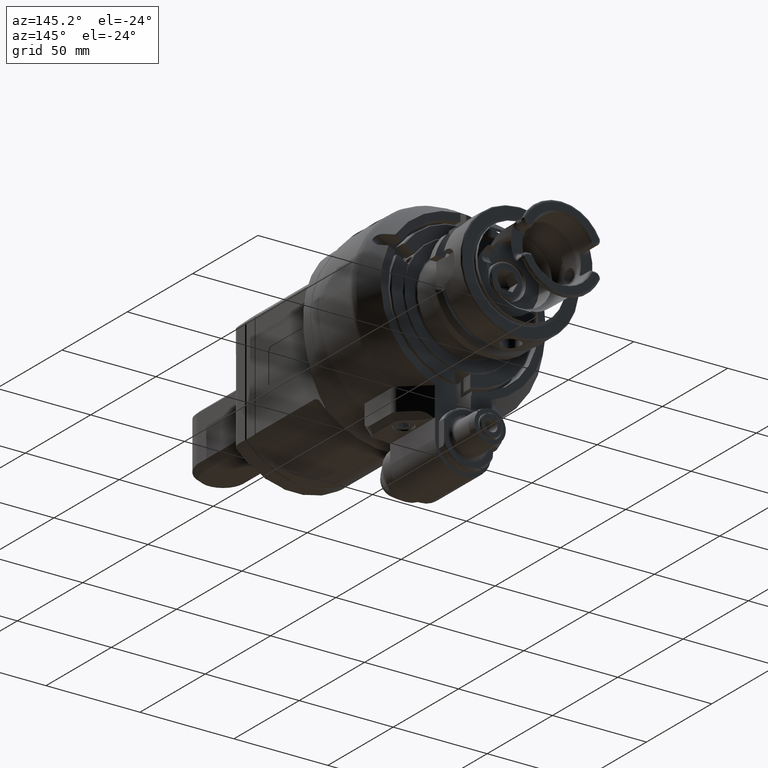
[diagram: clean part render]
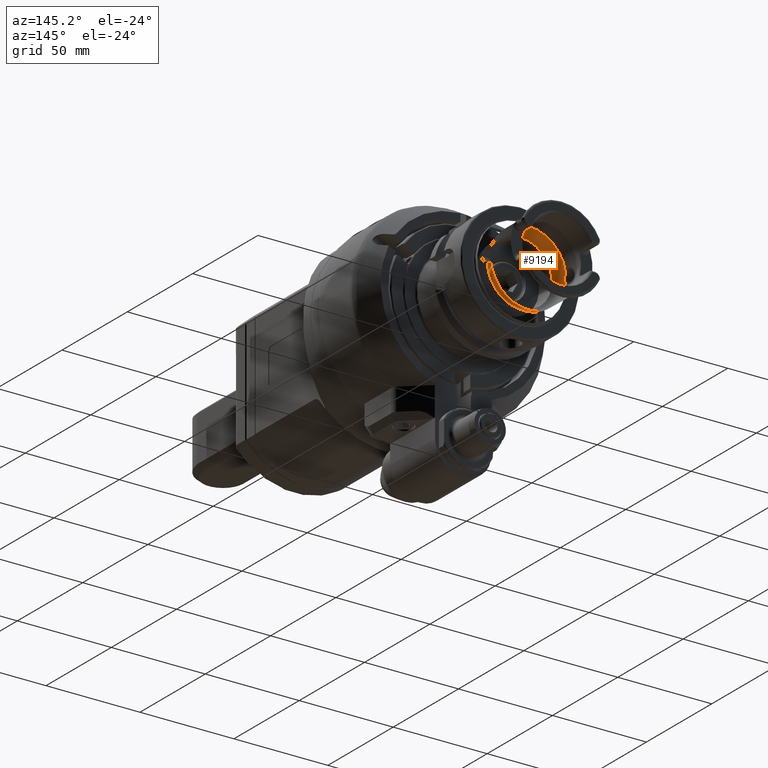
[diagram: same view with one face highlighted and labeled with its STEP entity id]
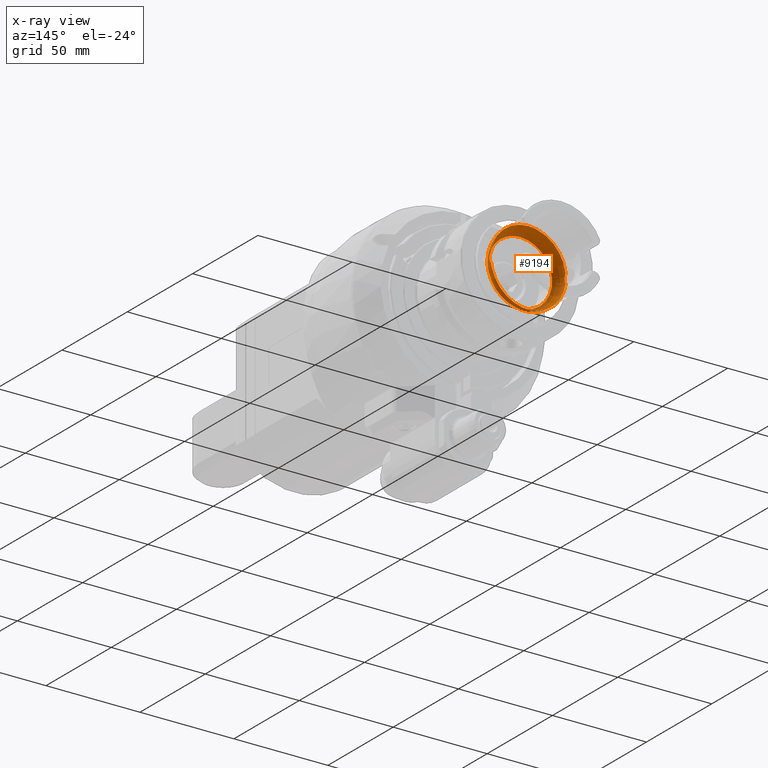
[diagram: x-ray of the same camera — body ghosted, the highlighted face saturated]
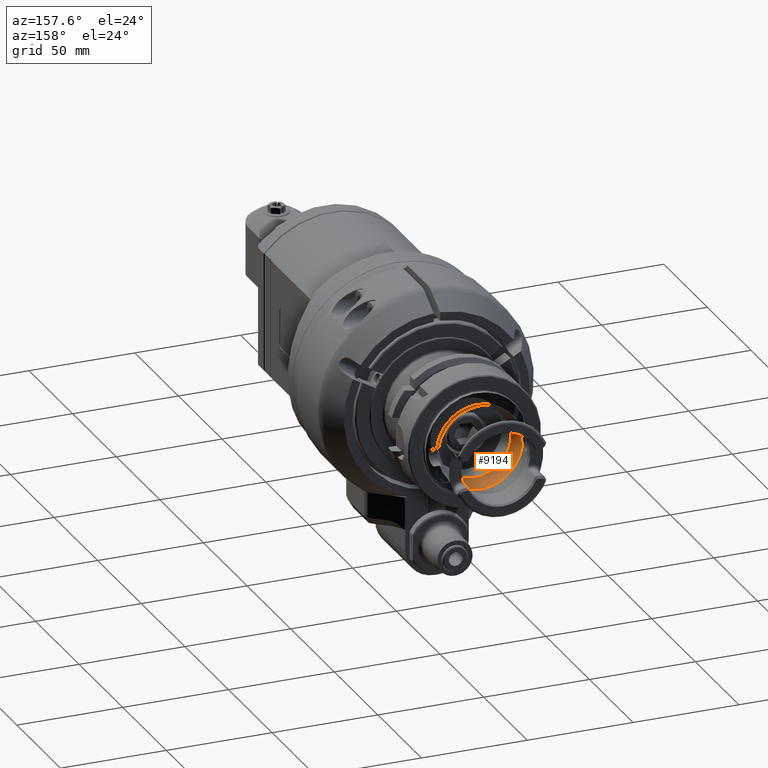
[diagram: same view with one face highlighted and labeled with its STEP entity id]
A machine part, auxiliary view. The second image highlights one B-rep face of the part: STEP entity #9194.
The next image is the same camera in x-ray: the body ghosted, the highlighted face saturated — about 6% of this face is hidden behind the body in this view.
A second angle (auxiliary view) of the same face is appended — the face is thin or edge-on in the first view.
In plain terms, the highlighted toroidal blend (fillet) surface has major radius 12 mm and minor (blend) radius 8 mm.
Its self-contained STEP definition (entity closure, byte-faithful):
#341=TOROIDAL_SURFACE('',#10091,0.47244094488189,0.31496062992126);
#495=B_SPLINE_CURVE_WITH_KNOTS('',3,(#16394,#16395,#16396,#16397,#16398,
#16399,#16400,#16401,#16402,#16403),.UNSPECIFIED.,.F.,.F.,(4,2,2,2,4),(1.98660032027334,
2.11130194476012,2.19789693302954,2.26163075647671,2.26785014392847),
 .UNSPECIFIED.);
#496=B_SPLINE_CURVE_WITH_KNOTS('',3,(#16404,#16405,#16406,#16407,#16408,
#16409,#16410,#16411,#16412,#16413),.UNSPECIFIED.,.F.,.F.,(4,2,2,2,4),(2.26785014392847,
2.32348682178374,2.40359511107754,2.54817630361161,2.54850230056354),
 .UNSPECIFIED.);
#497=B_SPLINE_CURVE_WITH_KNOTS('',3,(#16420,#16421,#16422,#16423,#16424,
#16425,#16426,#16427,#16428,#16429),.UNSPECIFIED.,.F.,.F.,(4,2,2,2,4),(1.98660032767908,
2.11130195305524,2.1978969420128,2.26163076599713,2.26785015350296),
 .UNSPECIFIED.);
#498=B_SPLINE_CURVE_WITH_KNOTS('',3,(#16430,#16431,#16432,#16433,#16434,
#16435,#16436,#16437,#16438,#16439),.UNSPECIFIED.,.F.,.F.,(4,2,2,2,4),(2.26785015350296,
2.32348683185534,2.40359512190154,2.5481763158632,2.54850231281622),
 .UNSPECIFIED.);
#2304=FACE_OUTER_BOUND('',#2882,.T.);
#2882=EDGE_LOOP('',(#7563,#7564,#7565,#7566,#7567,#7568,#7569,#7570,#7571,
#7572,#7573));
#3401=CIRCLE('',#10087,0.78740157480315);
#3402=CIRCLE('',#10088,0.787401574803149);
#3403=CIRCLE('',#10089,0.78740157480315);
#3404=CIRCLE('',#10092,0.669291338582677);
#3405=CIRCLE('',#10093,0.31496062992126);
#3406=CIRCLE('',#10094,0.669291338582677);
#4159=VERTEX_POINT('',#16320);
#4160=VERTEX_POINT('',#16322);
#4161=VERTEX_POINT('',#16324);
#4162=VERTEX_POINT('',#16356);
#4163=VERTEX_POINT('',#16358);
#4164=VERTEX_POINT('',#16392);
#4165=VERTEX_POINT('',#16415);
#4166=VERTEX_POINT('',#16416);
#4167=VERTEX_POINT('',#16419);
#5355=EDGE_CURVE('',#4160,#4159,#3401,.T.);
#5357=EDGE_CURVE('',#4162,#4161,#3402,.T.);
#5359=EDGE_CURVE('',#4159,#4163,#3403,.T.);
#5361=EDGE_CURVE('',#4164,#4161,#495,.F.);
#5362=EDGE_CURVE('',#4160,#4164,#496,.F.);
#5363=EDGE_CURVE('',#4165,#4166,#3404,.T.);
#5364=EDGE_CURVE('',#4166,#4159,#3405,.T.);
#5365=EDGE_CURVE('',#4167,#4163,#497,.F.);
#5366=EDGE_CURVE('',#4162,#4167,#498,.F.);
#5367=EDGE_CURVE('',#4166,#4165,#3406,.T.);
#7563=ORIENTED_EDGE('',*,*,#5363,.T.);
#7564=ORIENTED_EDGE('',*,*,#5364,.T.);
#7565=ORIENTED_EDGE('',*,*,#5359,.T.);
#7566=ORIENTED_EDGE('',*,*,#5365,.F.);
#7567=ORIENTED_EDGE('',*,*,#5366,.F.);
#7568=ORIENTED_EDGE('',*,*,#5357,.T.);
#7569=ORIENTED_EDGE('',*,*,#5361,.F.);
#7570=ORIENTED_EDGE('',*,*,#5362,.F.);
#7571=ORIENTED_EDGE('',*,*,#5355,.T.);
#7572=ORIENTED_EDGE('',*,*,#5364,.F.);
#7573=ORIENTED_EDGE('',*,*,#5367,.T.);
#9194=ADVANCED_FACE('',(#2304),#341,.F.);
#10087=AXIS2_PLACEMENT_3D('',#16323,#12090,#12091);
#10088=AXIS2_PLACEMENT_3D('',#16357,#12092,#12093);
#10089=AXIS2_PLACEMENT_3D('',#16390,#12094,#12095);
#10091=AXIS2_PLACEMENT_3D('',#16414,#12099,#12100);
#10092=AXIS2_PLACEMENT_3D('',#16417,#12101,#12102);
#10093=AXIS2_PLACEMENT_3D('',#16418,#12103,#12104);
#10094=AXIS2_PLACEMENT_3D('',#16440,#12105,#12106);
#12090=DIRECTION('center_axis',(0.,1.,0.));
#12091=DIRECTION('ref_axis',(0.991876423790776,0.,-0.127205188290497));
#12092=DIRECTION('center_axis',(0.,1.,0.));
#12093=DIRECTION('ref_axis',(-0.991876423790827,0.,0.127205188290103));
#12094=DIRECTION('center_axis',(0.,1.,0.));
#12095=DIRECTION('ref_axis',(0.991876423790776,0.,-0.127205188290497));
#12099=DIRECTION('center_axis',(0.,1.,0.));
#12100=DIRECTION('ref_axis',(-0.966794372151946,0.,0.255555555555586));
#12101=DIRECTION('center_axis',(0.,-1.,0.));
#12102=DIRECTION('ref_axis',(-0.966794372151946,0.,0.255555555555586));
#12103=DIRECTION('center_axis',(0.255555555555586,0.,0.966794372151946));
#12104=DIRECTION('ref_axis',(0.966794372151946,0.,-0.255555555555586));
#12105=DIRECTION('center_axis',(0.,-1.,0.));
#12106=DIRECTION('ref_axis',(-0.966794372151946,0.,0.255555555555586));
#16320=CARTESIAN_POINT('',(0.761255411143265,3.51358259834999,-0.201224846894162));
#16322=CARTESIAN_POINT('',(0.781005058104725,3.51358259835,-0.100161565569606));
#16323=CARTESIAN_POINT('Origin',(5.30359484797244E-16,3.51358259836221,
0.));
#16324=CARTESIAN_POINT('',(0.78100505810315,3.51358259836221,0.100161565582795));
#16356=CARTESIAN_POINT('',(-0.781005058104724,3.51358259835,0.100161565569803));
#16357=CARTESIAN_POINT('Origin',(5.30359484797244E-16,3.51358259836221,
0.));
#16358=CARTESIAN_POINT('',(-0.781005058104724,3.51358259835,-0.100161565569646));
#16390=CARTESIAN_POINT('Origin',(5.30359484797244E-16,3.51358259836221,
0.));
#16392=CARTESIAN_POINT('',(0.78495600492741,3.4744094488189,4.45542315885066E-17));
#16394=CARTESIAN_POINT('Ctrl Pts',(0.781005058103007,3.51358259836217,0.10016156558281));
#16395=CARTESIAN_POINT('Ctrl Pts',(0.782530646438696,3.50259752392881,0.0882658628766483));
#16396=CARTESIAN_POINT('Ctrl Pts',(0.783434837991581,3.49360074421099,0.074594820749288));
#16397=CARTESIAN_POINT('Ctrl Pts',(0.784410220143942,3.48243071099851,0.0493193486256723));
#16398=CARTESIAN_POINT('Ctrl Pts',(0.784647617515537,3.47905660019747,0.0384599110406886));
#16399=CARTESIAN_POINT('Ctrl Pts',(0.784894295558503,3.47541449660248,0.019115486885584));
#16400=CARTESIAN_POINT('Ctrl Pts',(0.784946055148237,3.47456795222828,0.0107943627447334));
#16401=CARTESIAN_POINT('Ctrl Pts',(0.784955581953299,3.47441619306714,0.00162956545511948));
#16402=CARTESIAN_POINT('Ctrl Pts',(0.784956004927409,3.4744094488189,0.000814741202194418));
#16403=CARTESIAN_POINT('Ctrl Pts',(0.784956004927409,3.4744094488189,7.45203510758584E-17));
#16404=CARTESIAN_POINT('Ctrl Pts',(0.784956004927409,3.4744094488189,5.1905111879621E-17));
#16405=CARTESIAN_POINT('Ctrl Pts',(0.784956004927409,3.4744094488189,-0.00728841773462627));
#16406=CARTESIAN_POINT('Ctrl Pts',(0.784922991030387,3.47494921345727,-0.014570189331382));
#16407=CARTESIAN_POINT('Ctrl Pts',(0.784749937477355,3.47757509662559,-0.0321716381145213));
#16408=CARTESIAN_POINT('Ctrl Pts',(0.784571169865641,3.48022925493165,-0.04236633829334));
#16409=CARTESIAN_POINT('Ctrl Pts',(0.783723832498677,3.49064422251731,-0.0699253295901435));
#16410=CARTESIAN_POINT('Ctrl Pts',(0.782793109185742,3.50069205541869,-0.0861782559036301));
#16411=CARTESIAN_POINT('Ctrl Pts',(0.781013079974534,3.51352481893459,-0.100098969252904));
#16412=CARTESIAN_POINT('Ctrl Pts',(0.781009071178442,3.51355370201358,-0.100130273817404));
#16413=CARTESIAN_POINT('Ctrl Pts',(0.781005058103002,3.51358259836221,-0.100161565582849));
#16414=CARTESIAN_POINT('Origin',(5.30359484797244E-16,3.51358259836221,
0.));
#16415=CARTESIAN_POINT('',(6.12324034346476E-16,3.26771653543307,0.669291338582677));
#16416=CARTESIAN_POINT('',(0.647067099471776,3.26771653543307,-0.171041119860038));
#16417=CARTESIAN_POINT('Origin',(5.30359484797244E-16,3.26771653543307,
0.));
#16418=CARTESIAN_POINT('Origin',(0.456753246685959,3.51358259836221,-0.120734908136497));
#16419=CARTESIAN_POINT('',(-0.784956004927409,3.4744094488189,5.54816235631637E-17));
#16420=CARTESIAN_POINT('Ctrl Pts',(-0.781005058104695,3.51358259835,-0.100161565569638));
#16421=CARTESIAN_POINT('Ctrl Pts',(-0.782530646439666,3.50259752391995,
-0.0882658628641524));
#16422=CARTESIAN_POINT('Ctrl Pts',(-0.78343483799191,3.4936007442072,-0.0745948207407232));
#16423=CARTESIAN_POINT('Ctrl Pts',(-0.784410220144038,3.48243071099741,
-0.0493193486231765));
#16424=CARTESIAN_POINT('Ctrl Pts',(-0.784647617515571,3.47905660019696,
-0.0384599110380064));
#16425=CARTESIAN_POINT('Ctrl Pts',(-0.784894295558527,3.47541449660211,
-0.019115486883605));
#16426=CARTESIAN_POINT('Ctrl Pts',(-0.784946055148238,3.47456795222824,
-0.010794362742717));
#16427=CARTESIAN_POINT('Ctrl Pts',(-0.784955581953298,3.47441619306714,
-0.0016295654550985));
#16428=CARTESIAN_POINT('Ctrl Pts',(-0.784956004927408,3.4744094488189,-0.000814741202173917));
#16429=CARTESIAN_POINT('Ctrl Pts',(-0.784956004927408,3.4744094488189,1.04495449982653E-16));
#16430=CARTESIAN_POINT('Ctrl Pts',(-0.784956004927409,3.4744094488189,9.15169077877528E-17));
#16431=CARTESIAN_POINT('Ctrl Pts',(-0.784956004927409,3.4744094488189,0.00728841773620425));
#16432=CARTESIAN_POINT('Ctrl Pts',(-0.78492299103037,3.47494921345751,0.0145701893329465));
#16433=CARTESIAN_POINT('Ctrl Pts',(-0.78474993747733,3.47757509662597,0.0321716381170228));
#16434=CARTESIAN_POINT('Ctrl Pts',(-0.784571169865567,3.48022925493254,
0.0423663382957073));
#16435=CARTESIAN_POINT('Ctrl Pts',(-0.783723832498545,3.49064422251893,
0.0699253295944172));
#16436=CARTESIAN_POINT('Ctrl Pts',(-0.782793109185313,3.50069205542177,
0.086178255906978));
#16437=CARTESIAN_POINT('Ctrl Pts',(-0.78101307997456,3.5135248189344,0.100098969252694));
#16438=CARTESIAN_POINT('Ctrl Pts',(-0.781009071178454,3.51355370201348,
0.100130273817299));
#16439=CARTESIAN_POINT('Ctrl Pts',(-0.781005058103001,3.51358259836221,
0.100161565582849));
#16440=CARTESIAN_POINT('Origin',(5.30359484797244E-16,3.26771653543307,
0.));